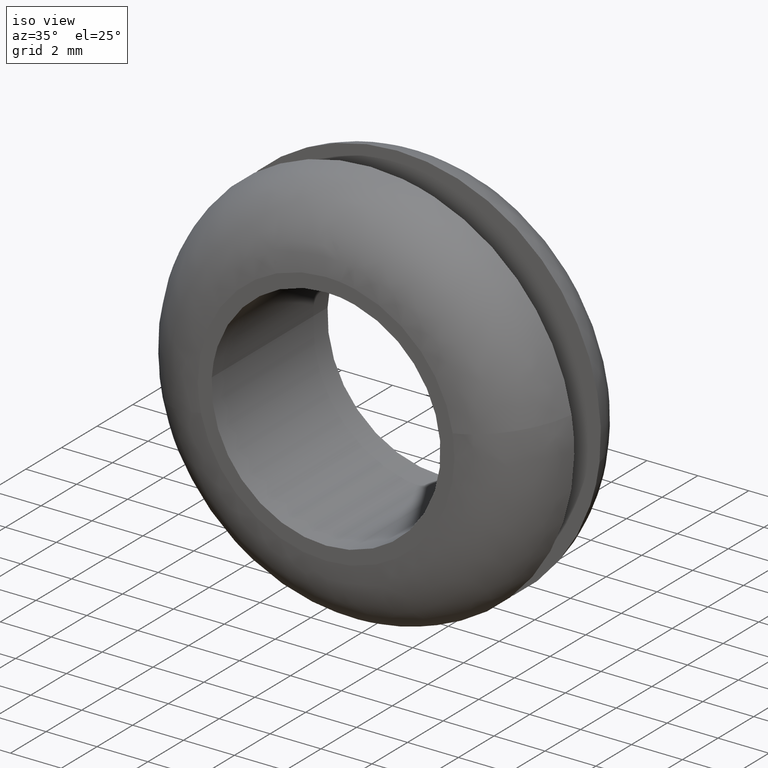
[diagram: clean part render]
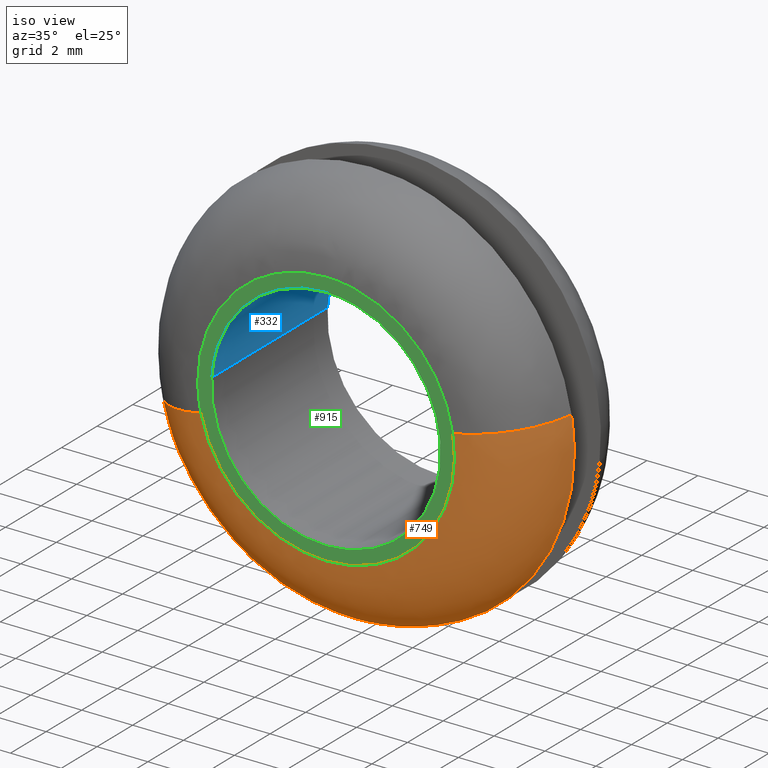
[diagram: same view with three faces highlighted in distinct colors, each labeled with its STEP entity id]
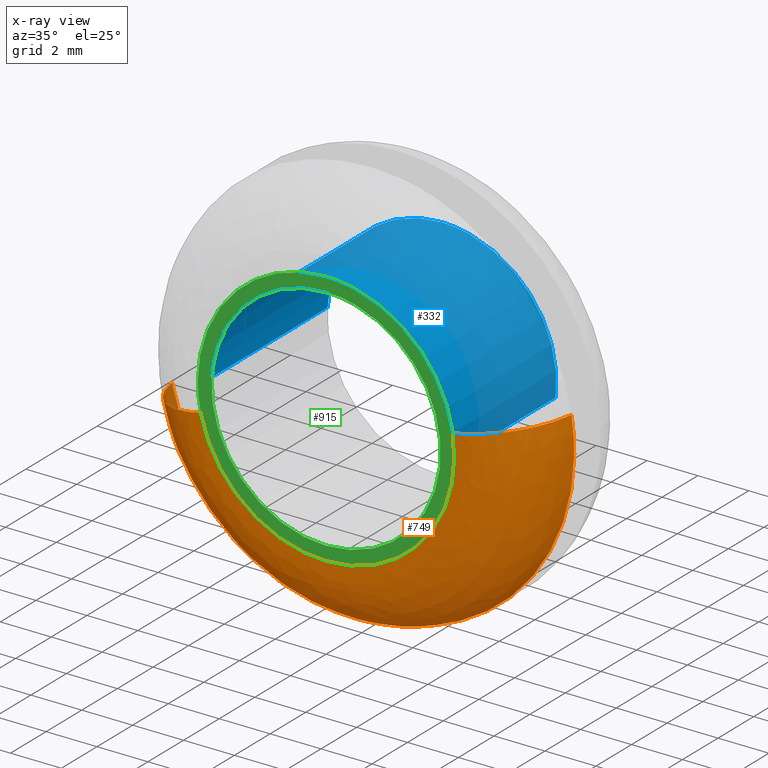
[diagram: x-ray of the same camera — body ghosted, the three highlighted faces saturated]
A machine part, iso view with three faces highlighted in distinct colors.
The next image is the same camera in x-ray (body ghosted, the three faces saturated) — at least one of them is partly hidden behind the body in this view.
Their STEP definitions:

[orange] entity #749 — the highlighted face is a freeform B-spline surface patch.
#630=CARTESIAN_POINT('',(-7.831330557743068,2.689046502678746,-1.756059669706950));
#631=CARTESIAN_POINT('',(-6.172989567984288,2.689046502678746,-9.151603620911683));
#632=CARTESIAN_POINT('',(1.305293545111996,2.689046502678746,-7.918945171504888));
#633=CARTESIAN_POINT('',(9.224238716616883,2.689046502678747,-6.613651626392897));
#634=CARTESIAN_POINT('',(7.918945171504887,2.689046502678746,1.305293545111999));
#635=CARTESIAN_POINT('',(-7.539818817502022,-0.177699000824315,-1.690692487654182));
#636=CARTESIAN_POINT('',(-5.943207550971391,-0.177699000824316,-8.810946324190820));
#637=CARTESIAN_POINT('',(1.256705582944471,-0.177699000824315,-7.624172083994697));
#638=CARTESIAN_POINT('',(8.880877666939165,-0.177699000824316,-6.367466501050229));
#639=CARTESIAN_POINT('',(7.624172083994696,-0.177699000824315,1.256705582944474));
#640=CARTESIAN_POINT('',(-4.733112473003720,0.006106330215611,-1.061330238168890));
#641=CARTESIAN_POINT('',(-3.730841611718217,0.006106330215611,-5.531061283487222));
#642=CARTESIAN_POINT('',(0.788895464665626,0.006106330215611,-4.786065137708119));
#643=CARTESIAN_POINT('',(5.574960602373740,0.006106330215611,-3.997169673042494));
#644=CARTESIAN_POINT('',(4.786065137708119,0.006106330215611,0.788895464665628));
#652=(BOUNDED_SURFACE()B_SPLINE_SURFACE(2,2,((#630,#635,#640),(#631,#636,#641),(#632,#637,#642),(#633,#638,#643),(#634,#639,#644)),.UNSPECIFIED.,.F.,.F.,.U.)B_SPLINE_SURFACE_WITH_KNOTS((3,2,3),(3,3),(0.0,12.765679408416970,26.063262125517991),(0.0,4.830464040311019),.UNSPECIFIED.)GEOMETRIC_REPRESENTATION_ITEM()RATIONAL_B_SPLINE_SURFACE(((0.895726498561901,0.644846316304249,0.892746995006884),(0.658684960632946,0.474196723163942,0.656493941181146),(0.916338806207898,0.659685411359928,0.913290738817818),(0.647949383733990,0.466468027822443,0.645794074612951),(0.916338806207898,0.659685411359928,0.913290738817818)))REPRESENTATION_ITEM('')SURFACE());
#653=CARTESIAN_POINT('',(-7.806154549626388,2.500000008896763,-1.750414323469428));
#654=VERTEX_POINT('',#653);
#655=CARTESIAN_POINT('',(0.0,2.500000000000000,-8.0));
#656=VERTEX_POINT('',#655);
#657=CARTESIAN_POINT('',(-7.806154549626388,2.500000008896763,-1.750414323469427));
#658=CARTESIAN_POINT('',(-6.404777752301630,2.500000000000000,-8.0));
#659=CARTESIAN_POINT('',(0.0,2.500000000000000,-8.0));
#667=(BOUNDED_CURVE()B_SPLINE_CURVE(2,(#657,#658,#659),.UNSPECIFIED.,.F.,.U.)B_SPLINE_CURVE_WITH_KNOTS((3,3),(0.787436176722882,1.0),.UNSPECIFIED.)CURVE()GEOMETRIC_REPRESENTATION_ITEM()RATIONAL_B_SPLINE_CURVE((0.925416950449343,0.750965990388284,1.0))REPRESENTATION_ITEM(''));
#668=EDGE_CURVE('',#654,#656,#667,.T.);
#669=ORIENTED_EDGE('',*,*,#668,.T.);
#670=CARTESIAN_POINT('',(7.893489028008903,2.500003763030137,1.301091954507213));
#671=VERTEX_POINT('',#670);
#672=CARTESIAN_POINT('',(0.0,2.500000000000000,-8.0));
#673=CARTESIAN_POINT('',(8.000000243604225,2.500001596771400,-7.999999959846464));
#674=CARTESIAN_POINT('',(8.000000530649082,2.500003478286468,0.000000087467437));
#675=CARTESIAN_POINT('',(8.000000554147494,2.500003632313317,0.654905709400193));
#676=CARTESIAN_POINT('',(7.893489028008903,2.500003763030137,1.301091954507212));
#684=(BOUNDED_CURVE()B_SPLINE_CURVE(2,(#672,#673,#674,#675,#676),.UNSPECIFIED.,.F.,.U.)B_SPLINE_CURVE_WITH_KNOTS((3,2,3),(0.0,0.250000000000000,0.277993776009529),.UNSPECIFIED.)CURVE()GEOMETRIC_REPRESENTATION_ITEM()RATIONAL_B_SPLINE_CURVE((1.0,0.707106781186548,1.0,0.967203251351305,0.941751341386709))REPRESENTATION_ITEM(''));
#685=EDGE_CURVE('',#656,#671,#684,.T.);
#686=ORIENTED_EDGE('',*,*,#685,.T.);
#687=CARTESIAN_POINT('',(4.974831063378677,-8.939834E-017,0.820010081490540));
#688=VERTEX_POINT('',#687);
#689=CARTESIAN_POINT('',(7.893489028008905,2.500003763030138,1.301091954507212));
#690=CARTESIAN_POINT('',(7.476540246144787,-4.236501E-009,1.232368364594127));
#691=CARTESIAN_POINT('',(4.974831063378677,-8.939834E-017,0.820010081490540));
#699=(BOUNDED_CURVE()B_SPLINE_CURVE(2,(#689,#690,#691),.UNSPECIFIED.,.F.,.U.)B_SPLINE_CURVE_WITH_KNOTS((3,3),(-1.708625560262235,-0.300625566020885),.UNSPECIFIED.)CURVE()GEOMETRIC_REPRESENTATION_ITEM()RATIONAL_B_SPLINE_CURVE((0.894080231362465,0.681805578434915,0.891308979898982))REPRESENTATION_ITEM(''));
#700=EDGE_CURVE('',#671,#688,#699,.T.);
#701=ORIENTED_EDGE('',*,*,#700,.T.);
#702=CARTESIAN_POINT('',(0.0,-9.261624E-016,-5.041960000000000));
#703=VERTEX_POINT('',#702);
#704=CARTESIAN_POINT('',(0.0,-9.261624E-016,-5.041960000000000));
#705=CARTESIAN_POINT('',(5.041960000000000,-9.261624E-016,-5.041960000000000));
#706=CARTESIAN_POINT('',(5.041960000000000,-9.261624E-016,-3.061516E-016));
#707=CARTESIAN_POINT('',(5.041960000000000,-9.261624E-016,0.412752747310127));
#708=CARTESIAN_POINT('',(4.974831063378677,-8.939834E-017,0.820010081490540));
#716=(BOUNDED_CURVE()B_SPLINE_CURVE(2,(#704,#705,#706,#707,#708),.UNSPECIFIED.,.F.,.U.)B_SPLINE_CURVE_WITH_KNOTS((3,2,3),(0.0,0.250000000000000,0.277993891203424),.UNSPECIFIED.)CURVE()GEOMETRIC_REPRESENTATION_ITEM()RATIONAL_B_SPLINE_CURVE((1.0,0.707106781186548,1.0,0.967203116393262,0.941751131918511))REPRESENTATION_ITEM(''));
#717=EDGE_CURVE('',#703,#688,#716,.T.);
#718=ORIENTED_EDGE('',*,*,#717,.F.);
#719=CARTESIAN_POINT('',(-4.919789906633861,-8.079921E-017,-1.103189882610882));
#720=VERTEX_POINT('',#719);
#721=CARTESIAN_POINT('',(-4.919789906633861,-8.079921E-017,-1.103189882610882));
#722=CARTESIAN_POINT('',(-4.036579154455751,-9.261624E-016,-5.041960000000000));
#723=CARTESIAN_POINT('',(0.0,-9.261624E-016,-5.041960000000000));
#731=(BOUNDED_CURVE()B_SPLINE_CURVE(2,(#721,#722,#723),.UNSPECIFIED.,.F.,.U.)B_SPLINE_CURVE_WITH_KNOTS((3,3),(0.787436176724606,1.0),.UNSPECIFIED.)CURVE()GEOMETRIC_REPRESENTATION_ITEM()RATIONAL_B_SPLINE_CURVE((0.925416950446514,0.750965990390304,1.0))REPRESENTATION_ITEM(''));
#732=EDGE_CURVE('',#720,#703,#731,.T.);
#733=ORIENTED_EDGE('',*,*,#732,.F.);
#734=CARTESIAN_POINT('',(-7.806154549626388,2.500000008896764,-1.750414323469428));
#735=CARTESIAN_POINT('',(-7.393816711980934,1.527802E-010,-1.657953681993071));
#736=CARTESIAN_POINT('',(-4.919789906633861,-8.079921E-017,-1.103189882610882));
#744=(BOUNDED_CURVE()B_SPLINE_CURVE(2,(#734,#735,#736),.UNSPECIFIED.,.F.,.U.)B_SPLINE_CURVE_WITH_KNOTS((3,3),(-1.708624173956208,-0.300625565992657),.UNSPECIFIED.)CURVE()GEOMETRIC_REPRESENTATION_ITEM()RATIONAL_B_SPLINE_CURVE((0.873968203928213,0.666469109565893,0.871259698160253))REPRESENTATION_ITEM(''));
#745=EDGE_CURVE('',#654,#720,#744,.T.);
#746=ORIENTED_EDGE('',*,*,#745,.F.);
#747=EDGE_LOOP('',(#669,#686,#701,#718,#733,#746));
#748=FACE_OUTER_BOUND('',#747,.T.);
#749=ADVANCED_FACE('',(#748),#652,.T.);

[blue] entity #332 — the highlighted face is a freeform B-spline surface patch.
#230=CARTESIAN_POINT('',(4.468542868636499,6.662500000000001,-0.531154055955413));
#231=CARTESIAN_POINT('',(4.483744269518725,6.662500000000001,-0.403266278870900));
#232=CARTESIAN_POINT('',(4.491606592898400,6.662500000000001,-0.274718427906857));
#233=CARTESIAN_POINT('',(4.766325020805256,6.662500000000001,4.216888164991543));
#234=CARTESIAN_POINT('',(0.274718427906856,6.662500000000001,4.491606592898400));
#235=CARTESIAN_POINT('',(-4.216888164991543,6.662500000000001,4.766325020805256));
#236=CARTESIAN_POINT('',(-4.491606592898400,6.662500000000001,0.274718427906856));
#237=CARTESIAN_POINT('',(4.468542868636499,-0.166562500000001,-0.531154055955413));
#238=CARTESIAN_POINT('',(4.483744269518725,-0.166562500000001,-0.403266278870900));
#239=CARTESIAN_POINT('',(4.491606592898400,-0.166562500000001,-0.274718427906857));
#240=CARTESIAN_POINT('',(4.766325020805256,-0.166562500000001,4.216888164991543));
#241=CARTESIAN_POINT('',(0.274718427906856,-0.166562500000001,4.491606592898400));
#242=CARTESIAN_POINT('',(-4.216888164991543,-0.166562500000001,4.766325020805256));
#243=CARTESIAN_POINT('',(-4.491606592898400,-0.166562500000001,0.274718427906856));
#251=(BOUNDED_SURFACE()B_SPLINE_SURFACE(2,1,((#230,#237),(#231,#238),(#232,#239),(#233,#240),(#234,#241),(#235,#242),(#236,#243)),.UNSPECIFIED.,.F.,.F.,.U.)B_SPLINE_SURFACE_WITH_KNOTS((3,2,2,3),(2,2),(0.0,0.298233764908629,7.754077887624337,15.209922010340049),(0.0,6.829062500000004),.UNSPECIFIED.)GEOMETRIC_REPRESENTATION_ITEM()RATIONAL_B_SPLINE_SURFACE(((0.977505800795127,0.977505800795127),(0.988284271247462,0.988284271247462),(1.0,1.0),(0.707106781186548,0.707106781186548),(1.0,1.0),(0.707106781186548,0.707106781186548),(1.0,1.0)))REPRESENTATION_ITEM('')SURFACE());
#252=CARTESIAN_POINT('',(4.468542641703280,6.499999999999452,-0.531155965113607));
#253=VERTEX_POINT('',#252);
#254=CARTESIAN_POINT('',(0.0,6.500000000000000,4.500000000000000));
#255=VERTEX_POINT('',#254);
#256=CARTESIAN_POINT('',(4.468542641703280,6.499999999999452,-0.531155965113607));
#257=CARTESIAN_POINT('',(4.500000000000000,6.500000000000000,-0.266509503104442));
#258=CARTESIAN_POINT('',(4.500000000000000,6.500000000000000,-3.061516E-016));
#259=CARTESIAN_POINT('',(4.500000000000000,6.500000000000000,4.500000000000000));
#260=CARTESIAN_POINT('',(0.0,6.500000000000000,4.500000000000000));
#268=(BOUNDED_CURVE()B_SPLINE_CURVE(2,(#256,#257,#258,#259,#260),.UNSPECIFIED.,.F.,.U.)B_SPLINE_CURVE_WITH_KNOTS((3,2,3),(0.229562401310019,0.250000000000000,0.500000000000000),.UNSPECIFIED.)CURVE()GEOMETRIC_REPRESENTATION_ITEM()RATIONAL_B_SPLINE_CURVE((0.956026612661954,0.976055863739495,1.0,0.707106781186547,1.0))REPRESENTATION_ITEM(''));
#269=EDGE_CURVE('',#253,#255,#268,.T.);
#270=ORIENTED_EDGE('',*,*,#269,.F.);
#271=CARTESIAN_POINT('',(4.468542641703280,-9.385989E-016,-0.531155965113607));
#272=VERTEX_POINT('',#271);
#273=CARTESIAN_POINT('',(4.468542641703280,6.499999999999452,-0.531155965113607));
#274=CARTESIAN_POINT('',(4.468542641703280,-9.385989E-016,-0.531155965113607));
#275=QUASI_UNIFORM_CURVE('',1,(#273,#274),.UNSPECIFIED.,.F.,.U.);
#276=EDGE_CURVE('',#253,#272,#275,.T.);
#277=ORIENTED_EDGE('',*,*,#276,.T.);
#278=CARTESIAN_POINT('',(0.0,-8.266093E-016,4.500000000000000));
#279=VERTEX_POINT('',#278);
#280=CARTESIAN_POINT('',(4.468542641703280,-9.385989E-016,-0.531155965113607));
#281=CARTESIAN_POINT('',(4.500000000000000,-8.266093E-016,-0.266509503104442));
#282=CARTESIAN_POINT('',(4.500000000000000,-8.266093E-016,-3.061516E-016));
#283=CARTESIAN_POINT('',(4.500000000000000,-8.266093E-016,4.500000000000000));
#284=CARTESIAN_POINT('',(0.0,-8.266093E-016,4.500000000000000));
#292=(BOUNDED_CURVE()B_SPLINE_CURVE(2,(#280,#281,#282,#283,#284),.UNSPECIFIED.,.F.,.U.)B_SPLINE_CURVE_WITH_KNOTS((3,2,3),(0.229562401310019,0.250000000000000,0.500000000000000),.UNSPECIFIED.)CURVE()GEOMETRIC_REPRESENTATION_ITEM()RATIONAL_B_SPLINE_CURVE((0.956026612661954,0.976055863739495,1.0,0.707106781186547,1.0))REPRESENTATION_ITEM(''));
#293=EDGE_CURVE('',#272,#279,#292,.T.);
#294=ORIENTED_EDGE('',*,*,#293,.T.);
#295=CARTESIAN_POINT('',(-4.491606917686051,-9.545384E-016,0.274713117572676));
#296=VERTEX_POINT('',#295);
#297=CARTESIAN_POINT('',(0.0,-8.266093E-016,4.500000000000000));
#298=CARTESIAN_POINT('',(-4.233182315228993,-8.266093E-016,4.500000000000001));
#299=CARTESIAN_POINT('',(-4.491606917686051,-9.545384E-016,0.274713117572676));
#307=(BOUNDED_CURVE()B_SPLINE_CURVE(2,(#297,#298,#299),.UNSPECIFIED.,.F.,.U.)B_SPLINE_CURVE_WITH_KNOTS((3,3),(0.500000000000000,0.739333166240523),.UNSPECIFIED.)CURVE()GEOMETRIC_REPRESENTATION_ITEM()RATIONAL_B_SPLINE_CURVE((1.0,0.719603754283992,0.976072478881328))REPRESENTATION_ITEM(''));
#308=EDGE_CURVE('',#279,#296,#307,.T.);
#309=ORIENTED_EDGE('',*,*,#308,.T.);
#310=CARTESIAN_POINT('',(-4.491606921645149,6.499999999999988,0.274713052839469));
#311=VERTEX_POINT('',#310);
#312=CARTESIAN_POINT('',(-4.491606921645149,6.499999999999988,0.274713052839469));
#313=CARTESIAN_POINT('',(-4.491606917686051,-9.545384E-016,0.274713117572676));
#314=QUASI_UNIFORM_CURVE('',1,(#312,#313),.UNSPECIFIED.,.F.,.U.);
#315=EDGE_CURVE('',#311,#296,#314,.T.);
#316=ORIENTED_EDGE('',*,*,#315,.F.);
#317=CARTESIAN_POINT('',(0.0,6.500000000000000,4.500000000000000));
#318=CARTESIAN_POINT('',(-4.233182376351771,6.500000000000000,4.500000000000000));
#319=CARTESIAN_POINT('',(-4.491606921645149,6.499999999999988,0.274713052839469));
#327=(BOUNDED_CURVE()B_SPLINE_CURVE(2,(#317,#318,#319),.UNSPECIFIED.,.F.,.U.)B_SPLINE_CURVE_WITH_KNOTS((3,3),(0.500000000000000,0.739333168727275),.UNSPECIFIED.)CURVE()GEOMETRIC_REPRESENTATION_ITEM()RATIONAL_B_SPLINE_CURVE((1.0,0.719603751370581,0.976072484210920))REPRESENTATION_ITEM(''));
#328=EDGE_CURVE('',#255,#311,#327,.T.);
#329=ORIENTED_EDGE('',*,*,#328,.F.);
#330=EDGE_LOOP('',(#270,#277,#294,#309,#316,#329));
#331=FACE_OUTER_BOUND('',#330,.T.);
#332=ADVANCED_FACE('',(#331),#251,.F.);

[green] entity #915 — the highlighted face is a freeform B-spline surface patch.
#271=CARTESIAN_POINT('',(4.468542641703280,-9.385989E-016,-0.531155965113607));
#272=VERTEX_POINT('',#271);
#278=CARTESIAN_POINT('',(0.0,-8.266093E-016,4.500000000000000));
#279=VERTEX_POINT('',#278);
#280=CARTESIAN_POINT('',(4.468542641703280,-9.385989E-016,-0.531155965113607));
#281=CARTESIAN_POINT('',(4.500000000000000,-8.266093E-016,-0.266509503104442));
#282=CARTESIAN_POINT('',(4.500000000000000,-8.266093E-016,-3.061516E-016));
#283=CARTESIAN_POINT('',(4.500000000000000,-8.266093E-016,4.500000000000000));
#284=CARTESIAN_POINT('',(0.0,-8.266093E-016,4.500000000000000));
#292=(BOUNDED_CURVE()B_SPLINE_CURVE(2,(#280,#281,#282,#283,#284),.UNSPECIFIED.,.F.,.U.)B_SPLINE_CURVE_WITH_KNOTS((3,2,3),(0.229562401310019,0.250000000000000,0.500000000000000),.UNSPECIFIED.)CURVE()GEOMETRIC_REPRESENTATION_ITEM()RATIONAL_B_SPLINE_CURVE((0.956026612661954,0.976055863739495,1.0,0.707106781186547,1.0))REPRESENTATION_ITEM(''));
#293=EDGE_CURVE('',#272,#279,#292,.T.);
#295=CARTESIAN_POINT('',(-4.491606917686051,-9.545384E-016,0.274713117572676));
#296=VERTEX_POINT('',#295);
#297=CARTESIAN_POINT('',(0.0,-8.266093E-016,4.500000000000000));
#298=CARTESIAN_POINT('',(-4.233182315228993,-8.266093E-016,4.500000000000001));
#299=CARTESIAN_POINT('',(-4.491606917686051,-9.545384E-016,0.274713117572676));
#307=(BOUNDED_CURVE()B_SPLINE_CURVE(2,(#297,#298,#299),.UNSPECIFIED.,.F.,.U.)B_SPLINE_CURVE_WITH_KNOTS((3,3),(0.500000000000000,0.739333166240523),.UNSPECIFIED.)CURVE()GEOMETRIC_REPRESENTATION_ITEM()RATIONAL_B_SPLINE_CURVE((1.0,0.719603754283992,0.976072478881328))REPRESENTATION_ITEM(''));
#308=EDGE_CURVE('',#279,#296,#307,.T.);
#382=CARTESIAN_POINT('',(0.0,-8.266093E-016,-4.500000000000000));
#383=VERTEX_POINT('',#382);
#384=CARTESIAN_POINT('',(-4.491606917686051,-9.545384E-016,0.274713117572676));
#385=CARTESIAN_POINT('',(-4.500000000000000,-8.266093E-016,0.137484772231970));
#386=CARTESIAN_POINT('',(-4.500000000000000,-8.266093E-016,-3.061516E-016));
#387=CARTESIAN_POINT('',(-4.500000000000000,-8.266093E-016,-4.500000000000000));
#388=CARTESIAN_POINT('',(0.0,-8.266093E-016,-4.500000000000000));
#396=(BOUNDED_CURVE()B_SPLINE_CURVE(2,(#384,#385,#386,#387,#388),.UNSPECIFIED.,.F.,.U.)B_SPLINE_CURVE_WITH_KNOTS((3,2,3),(0.739333166240523,0.750000000000000,1.0),.UNSPECIFIED.)CURVE()GEOMETRIC_REPRESENTATION_ITEM()RATIONAL_B_SPLINE_CURVE((0.976072478881328,0.987503026902556,1.0,0.707106781186547,1.0))REPRESENTATION_ITEM(''));
#397=EDGE_CURVE('',#296,#383,#396,.T.);
#399=CARTESIAN_POINT('',(0.0,-8.266093E-016,-4.500000000000000));
#400=CARTESIAN_POINT('',(3.996783647157785,-8.266093E-016,-4.500000000000000));
#401=CARTESIAN_POINT('',(4.468542641703280,-9.385989E-016,-0.531155965113607));
#409=(BOUNDED_CURVE()B_SPLINE_CURVE(2,(#399,#400,#401),.UNSPECIFIED.,.F.,.U.)B_SPLINE_CURVE_WITH_KNOTS((3,3),(0.0,0.229562401310019),.UNSPECIFIED.)CURVE()GEOMETRIC_REPRESENTATION_ITEM()RATIONAL_B_SPLINE_CURVE((1.0,0.731050917447052,0.956026612661954))REPRESENTATION_ITEM(''));
#410=EDGE_CURVE('',#383,#272,#409,.T.);
#687=CARTESIAN_POINT('',(4.974831063378677,-8.939834E-017,0.820010081490540));
#688=VERTEX_POINT('',#687);
#702=CARTESIAN_POINT('',(0.0,-9.261624E-016,-5.041960000000000));
#703=VERTEX_POINT('',#702);
#704=CARTESIAN_POINT('',(0.0,-9.261624E-016,-5.041960000000000));
#705=CARTESIAN_POINT('',(5.041960000000000,-9.261624E-016,-5.041960000000000));
#706=CARTESIAN_POINT('',(5.041960000000000,-9.261624E-016,-3.061516E-016));
#707=CARTESIAN_POINT('',(5.041960000000000,-9.261624E-016,0.412752747310127));
#708=CARTESIAN_POINT('',(4.974831063378677,-8.939834E-017,0.820010081490540));
#716=(BOUNDED_CURVE()B_SPLINE_CURVE(2,(#704,#705,#706,#707,#708),.UNSPECIFIED.,.F.,.U.)B_SPLINE_CURVE_WITH_KNOTS((3,2,3),(0.0,0.250000000000000,0.277993891203424),.UNSPECIFIED.)CURVE()GEOMETRIC_REPRESENTATION_ITEM()RATIONAL_B_SPLINE_CURVE((1.0,0.707106781186548,1.0,0.967203116393262,0.941751131918511))REPRESENTATION_ITEM(''));
#717=EDGE_CURVE('',#703,#688,#716,.T.);
#719=CARTESIAN_POINT('',(-4.919789906633861,-8.079921E-017,-1.103189882610882));
#720=VERTEX_POINT('',#719);
#721=CARTESIAN_POINT('',(-4.919789906633861,-8.079921E-017,-1.103189882610882));
#722=CARTESIAN_POINT('',(-4.036579154455751,-9.261624E-016,-5.041960000000000));
#723=CARTESIAN_POINT('',(0.0,-9.261624E-016,-5.041960000000000));
#731=(BOUNDED_CURVE()B_SPLINE_CURVE(2,(#721,#722,#723),.UNSPECIFIED.,.F.,.U.)B_SPLINE_CURVE_WITH_KNOTS((3,3),(0.787436176724606,1.0),.UNSPECIFIED.)CURVE()GEOMETRIC_REPRESENTATION_ITEM()RATIONAL_B_SPLINE_CURVE((0.925416950446514,0.750965990390304,1.0))REPRESENTATION_ITEM(''));
#732=EDGE_CURVE('',#720,#703,#731,.T.);
#797=CARTESIAN_POINT('',(0.0,-9.261624E-016,5.041960000000000));
#798=VERTEX_POINT('',#797);
#799=CARTESIAN_POINT('',(0.0,-9.261624E-016,5.041960000000000));
#800=CARTESIAN_POINT('',(-5.041960000000000,-9.261624E-016,5.041960000000000));
#801=CARTESIAN_POINT('',(-5.041960000000000,-9.261624E-016,-3.061516E-016));
#802=CARTESIAN_POINT('',(-5.041960000000000,-9.261624E-016,-0.558359656962267));
#803=CARTESIAN_POINT('',(-4.919789906633862,-8.079921E-017,-1.103189882610882));
#811=(BOUNDED_CURVE()B_SPLINE_CURVE(2,(#799,#800,#801,#802,#803),.UNSPECIFIED.,.F.,.U.)B_SPLINE_CURVE_WITH_KNOTS((3,2,3),(0.500000000000000,0.750000000000000,0.787436176724607),.UNSPECIFIED.)CURVE()GEOMETRIC_REPRESENTATION_ITEM()RATIONAL_B_SPLINE_CURVE((1.0,0.707106781186548,1.0,0.956140790796242,0.925416950446512))REPRESENTATION_ITEM(''));
#812=EDGE_CURVE('',#798,#720,#811,.T.);
#814=CARTESIAN_POINT('',(4.974831063378677,-8.939834E-017,0.820010081490540));
#815=CARTESIAN_POINT('',(4.278919694035579,-9.261624E-016,5.041960000000000));
#816=CARTESIAN_POINT('',(0.0,-9.261624E-016,5.041960000000000));
#824=(BOUNDED_CURVE()B_SPLINE_CURVE(2,(#814,#815,#816),.UNSPECIFIED.,.F.,.U.)B_SPLINE_CURVE_WITH_KNOTS((3,3),(0.277993891203424,0.500000000000000),.UNSPECIFIED.)CURVE()GEOMETRIC_REPRESENTATION_ITEM()RATIONAL_B_SPLINE_CURVE((0.941751131918511,0.739903664793285,1.0))REPRESENTATION_ITEM(''));
#825=EDGE_CURVE('',#688,#798,#824,.T.);
#898=CARTESIAN_POINT('',(-5.544756179227646,-8.763859E-016,-5.545651559107308));
#899=CARTESIAN_POINT('',(-5.544756179227646,-8.763859E-016,5.545651288635497));
#900=CARTESIAN_POINT('',(5.545341930677368,-8.763859E-016,-5.545651559107308));
#901=CARTESIAN_POINT('',(5.545341930677368,-8.763859E-016,5.545651288635497));
#902=B_SPLINE_SURFACE_WITH_KNOTS('',1,1,((#898,#900),(#899,#901)),.UNSPECIFIED.,.F.,.F.,.U.,(2,2),(2,2),(0.0,11.091302847742810),(0.0,11.090098109905011),.UNSPECIFIED.);
#903=ORIENTED_EDGE('',*,*,#825,.T.);
#904=ORIENTED_EDGE('',*,*,#812,.T.);
#905=ORIENTED_EDGE('',*,*,#732,.T.);
#906=ORIENTED_EDGE('',*,*,#717,.T.);
#907=EDGE_LOOP('',(#903,#904,#905,#906));
#908=FACE_OUTER_BOUND('',#907,.T.);
#909=ORIENTED_EDGE('',*,*,#308,.F.);
#910=ORIENTED_EDGE('',*,*,#293,.F.);
#911=ORIENTED_EDGE('',*,*,#410,.F.);
#912=ORIENTED_EDGE('',*,*,#397,.F.);
#913=EDGE_LOOP('',(#909,#910,#911,#912));
#914=FACE_BOUND('',#913,.T.);
#915=ADVANCED_FACE('',(#908,#914),#902,.F.);